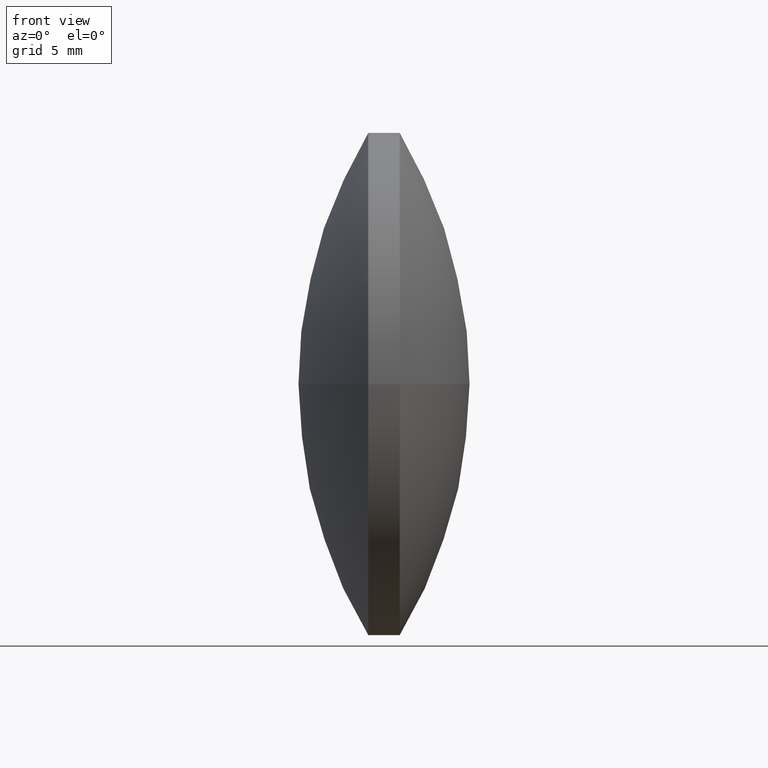
[diagram: clean part render]
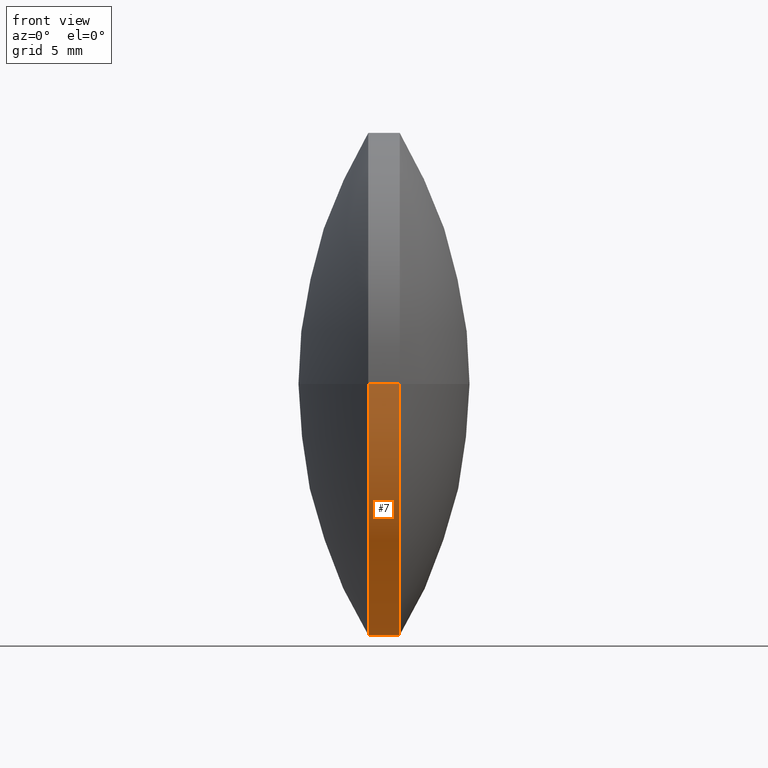
[diagram: same view with one face highlighted and labeled with its STEP entity id]
A machine part, front view. The second image highlights one B-rep face of the part: STEP entity #7.
In plain terms, the highlighted cylindrical surface (partial cylindrical patch) has radius 20 mm, axis along (-1, -0, -0).
Its self-contained STEP definition (entity closure, byte-faithful):
#7 = ADVANCED_FACE ( 'NONE', ( #229 ), #43, .T. ) ;
#10 = AXIS2_PLACEMENT_3D ( 'NONE', #67, #297, #136 ) ;
#19 = DIRECTION ( 'NONE',  ( 1.387778780781449400E-015, -1.000000000000000000, 0.0000000000000000000 ) ) ;
#23 = CARTESIAN_POINT ( 'NONE',  ( 104.1086056582156200, 56.56080791052685400, 0.0000000000000000000 ) ) ;
#42 = CARTESIAN_POINT ( 'NONE',  ( 104.1086056582155700, 96.56080791052674800, 2.449293598294700200E-015 ) ) ;
#43 = CYLINDRICAL_SURFACE ( 'NONE', #84, 19.99999999999994700 ) ;
#46 = CARTESIAN_POINT ( 'NONE',  ( 134.9046358656097800, 56.56080791052689700, -2.449293598294701800E-015 ) ) ;
#51 = DIRECTION ( 'NONE',  ( -1.000000000000000000, -1.732231757631238700E-015, -0.0000000000000000000 ) ) ;
#53 = VERTEX_POINT ( 'NONE', #295 ) ;
#54 = EDGE_CURVE ( 'NONE', #53, #176, #151, .T. ) ;
#67 = CARTESIAN_POINT ( 'NONE',  ( 137.4046358656097500, 76.56080791052686200, 0.0000000000000000000 ) ) ;
#68 = VECTOR ( 'NONE', #268, 1000.000000000000000 ) ;
#79 = DIRECTION ( 'NONE',  ( 1.387778780781449400E-015, -1.000000000000000000, 0.0000000000000000000 ) ) ;
#84 = AXIS2_PLACEMENT_3D ( 'NONE', #198, #93, #19 ) ;
#93 = DIRECTION ( 'NONE',  ( -1.000000000000000000, -1.732231757631238700E-015, -0.0000000000000000000 ) ) ;
#111 = EDGE_CURVE ( 'NONE', #53, #236, #128, .T. ) ;
#127 = CARTESIAN_POINT ( 'NONE',  ( 134.9046358656097200, 96.56080791052681900, 0.0000000000000000000 ) ) ;
#128 = LINE ( 'NONE', #42, #68 ) ;
#132 = ORIENTED_EDGE ( 'NONE', *, *, #248, .T. ) ;
#136 = DIRECTION ( 'NONE',  ( 1.387778780781449400E-015, -1.000000000000000000, 0.0000000000000000000 ) ) ;
#143 = CARTESIAN_POINT ( 'NONE',  ( 134.9046358656097500, 76.56080791052686200, 0.0000000000000000000 ) ) ;
#151 = CIRCLE ( 'NONE', #10, 19.99999999999994700 ) ;
#169 = EDGE_LOOP ( 'NONE', ( #199, #294, #132, #289 ) ) ;
#172 = VECTOR ( 'NONE', #251, 1000.000000000000000 ) ;
#176 = VERTEX_POINT ( 'NONE', #245 ) ;
#190 = EDGE_CURVE ( 'NONE', #236, #283, #263, .T. ) ;
#198 = CARTESIAN_POINT ( 'NONE',  ( 104.1086056582155900, 76.56080791052680500, 0.0000000000000000000 ) ) ;
#199 = ORIENTED_EDGE ( 'NONE', *, *, #111, .F. ) ;
#229 = FACE_OUTER_BOUND ( 'NONE', #169, .T. ) ;
#236 = VERTEX_POINT ( 'NONE', #127 ) ;
#245 = CARTESIAN_POINT ( 'NONE',  ( 137.4046358656097800, 56.56080791052694000, -2.449293598294696300E-015 ) ) ;
#247 = LINE ( 'NONE', #23, #172 ) ;
#248 = EDGE_CURVE ( 'NONE', #176, #283, #247, .T. ) ;
#251 = DIRECTION ( 'NONE',  ( -1.000000000000000000, -1.732231757631238700E-015, -0.0000000000000000000 ) ) ;
#263 = CIRCLE ( 'NONE', #299, 19.99999999999994700 ) ;
#268 = DIRECTION ( 'NONE',  ( -1.000000000000000000, -1.732231757631238700E-015, -0.0000000000000000000 ) ) ;
#283 = VERTEX_POINT ( 'NONE', #46 ) ;
#289 = ORIENTED_EDGE ( 'NONE', *, *, #190, .F. ) ;
#294 = ORIENTED_EDGE ( 'NONE', *, *, #54, .T. ) ;
#295 = CARTESIAN_POINT ( 'NONE',  ( 137.4046358656097200, 96.56080791052676200, 0.0000000000000000000 ) ) ;
#297 = DIRECTION ( 'NONE',  ( -1.000000000000000000, -1.732231757631238700E-015, -0.0000000000000000000 ) ) ;
#299 = AXIS2_PLACEMENT_3D ( 'NONE', #143, #51, #79 ) ;